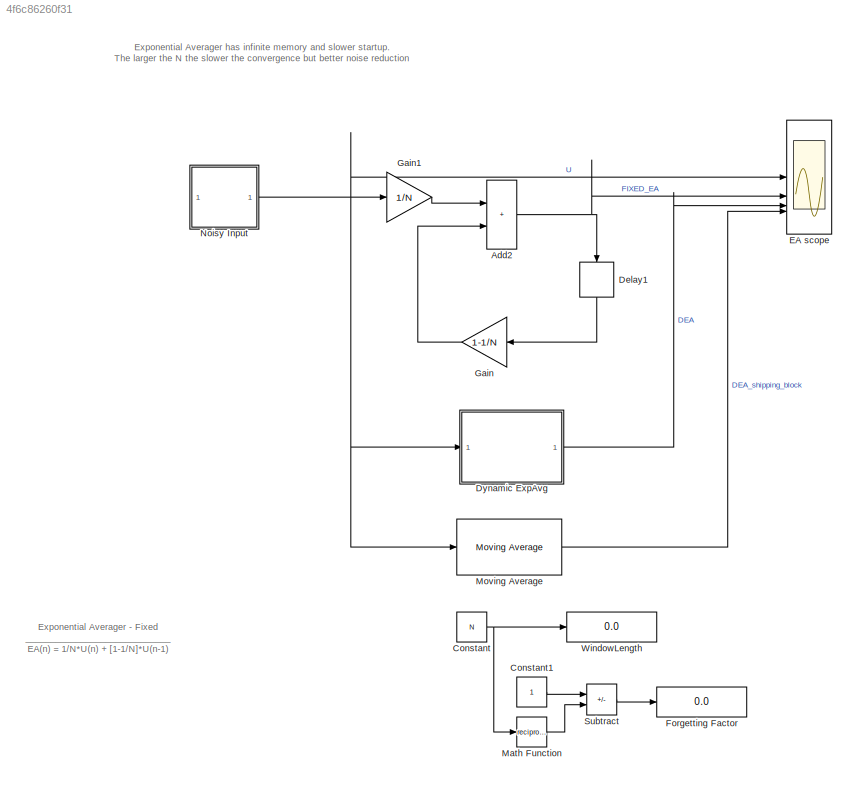
MODEL slx_4f6c86260f31
KIND model
CONFIG AbsTol = auto
CONFIG EnableMultiTasking = off
CONFIG FixedStep = auto
CONFIG InitFcn = N = 100;\n
CONFIG MaxStep = auto
CONFIG MinStep = auto
CONFIG PreLoadFcn = N = 100;
CONFIG RelTol = 1e-3
CONFIG SampleTimeConstraint = Unconstrained
CONFIG SolverName = VariableStepAuto
CONFIG StartTime = 0.0
CONFIG StopTime = 1000
BLOCK [Sum] Add2
  IconShape = rectangular
BLOCK [Constant] Constant
  Value = N
BLOCK [Constant] Constant1
BLOCK [Delay] Delay1
  DelayLength = 1
  InputPortMap = u0
  NameLocation = left
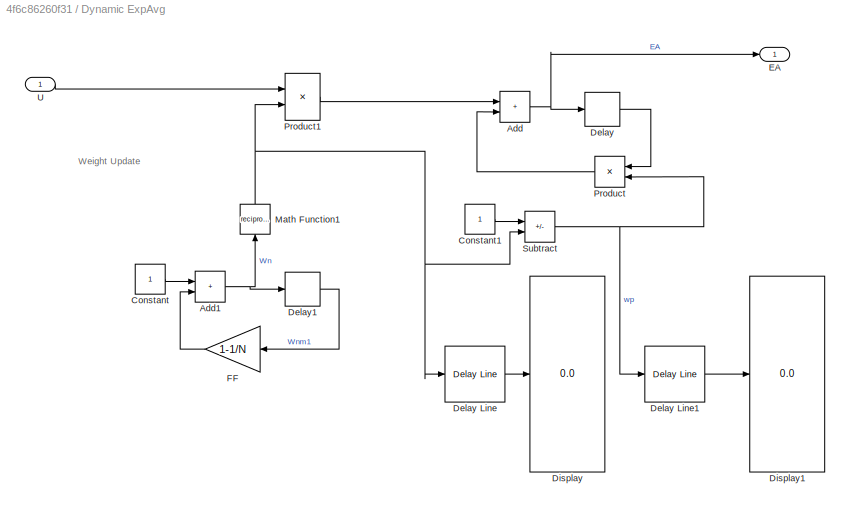
BLOCK [SubSystem] Dynamic ExpAvg
BLOCK [Sum] Dynamic ExpAvg/Add
  IconShape = rectangular
BLOCK [Sum] Dynamic ExpAvg/Add1
  IconShape = rectangular
BLOCK [Constant] Dynamic ExpAvg/Constant
  SampleTime = 1
BLOCK [Constant] Dynamic ExpAvg/Constant1
BLOCK [Delay] Dynamic ExpAvg/Delay
  DelayLength = 1
  InputPortMap = u0
BLOCK [Reference] Dynamic ExpAvg/Delay Line  REF=dspbuff3/Delay Line
  Commented = on
  SourceBlock = dspbuff3/Delay Line
  SourceType = Delay Line
  UserDataPersistent = on
BLOCK [Reference] Dynamic ExpAvg/Delay Line1  REF=dspbuff3/Delay Line
  Commented = on
  SourceBlock = dspbuff3/Delay Line
  SourceType = Delay Line
  UserDataPersistent = on
BLOCK [Delay] Dynamic ExpAvg/Delay1
  DelayLength = 1
  InputPortMap = u0
BLOCK [Display] Dynamic ExpAvg/Display
  Commented = on
  Decimation = 1
BLOCK [Display] Dynamic ExpAvg/Display1
  Commented = on
  Decimation = 1
BLOCK [Outport] Dynamic ExpAvg/EA
BLOCK [Gain] Dynamic ExpAvg/FF
  Gain = 1-1/N
BLOCK [Math] Dynamic ExpAvg/Math Function1
  NameLocation = right
  Operator = reciprocal
BLOCK [Product] Dynamic ExpAvg/Product
  NameLocation = top
BLOCK [Product] Dynamic ExpAvg/Product1
BLOCK [Sum] Dynamic ExpAvg/Subtract
  IconShape = rectangular
  Inputs = +-
BLOCK [Inport] Dynamic ExpAvg/U
BLOCK [Scope] EA scope
  Floating = off
  NumInputPorts = 4
  ScopeSpecificationString = Simulink.scopes.TimeScopeBlockCfg('CurrentConfiguration', extmgr.ConfigurationSet(extmgr.Configuration('Core','General UI',true),extmgr.Configuration('Core','Source UI',true),extmgr.Configuration('Sources','WiredSimulink',true),extmgr.Configuration('Visuals','Time Domain',true,'SerializedDisplays',{struct('MinYLimReal','-0.91369','MaxYLimReal','3.97383','YLabelReal','','MinYLimMag','0.00000','MaxY...<+2257ch>
BLOCK [Display] Forgetting Factor
  Decimation = 1
BLOCK [Gain] Gain
  Gain = 1-1/N
  NameLocation = top
BLOCK [Gain] Gain1
  Gain = 1/N
BLOCK [Math] Math Function
  Operator = reciprocal
BLOCK [Reference] Moving Average  REF=dspstat3/Moving
Average
  SourceBlock = dspstat3/Moving\nAverage
  SourceType = dsp.simulink.MovingAverage
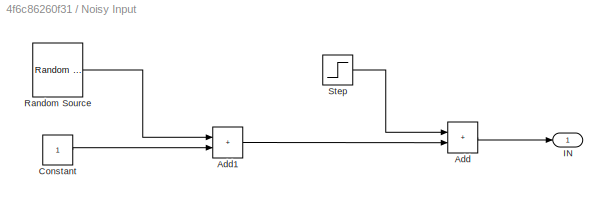
BLOCK [SubSystem] Noisy Input
BLOCK [Sum] Noisy Input/Add
  IconShape = rectangular
BLOCK [Sum] Noisy Input/Add1
  IconShape = rectangular
BLOCK [Constant] Noisy Input/Constant
  SampleTime = 1
BLOCK [Outport] Noisy Input/IN
  VectorParamsAs1DForOutWhenUnconnected = off
BLOCK [Reference] Noisy Input/Random Source  REF=dspsrcs4/Random
Source
  SourceBlock = dspsrcs4/Random\nSource
  SourceType = dsp.simulink.RandomSource
BLOCK [Step] Noisy Input/Step
  SampleTime = 0
  Time = 500
BLOCK [Sum] Subtract
  IconShape = rectangular
  Inputs = +-
BLOCK [Display] WindowLength 
  Decimation = 1
ANNOTATION (root): Exponential Averager - Fixed _____________________________ EA(n) = 1/N*U(n) + [1-1/N]*U(n-1)
ANNOTATION (root): Exponential Averager has infinite memory and slower startup. The larger the N the slower the convergence but better noise reduction
ANNOTATION Dynamic ExpAvg: Weight Update
NET Add2:1 -> Delay1:1, EA scope:2
LINE Constant1:1 -> Subtract:1
NET Constant:1 -> Math Function:1, WindowLength :1
LINE Delay1:1 -> Gain:1
NET Dynamic ExpAvg/Add1:1 -> Dynamic ExpAvg/Delay1:1, Dynamic ExpAvg/Math Function1:1
NET Dynamic ExpAvg/Add:1 -> Dynamic ExpAvg/Delay:1, Dynamic ExpAvg/EA:1
LINE Dynamic ExpAvg/Constant1:1 -> Dynamic ExpAvg/Subtract:1
LINE Dynamic ExpAvg/Constant:1 -> Dynamic ExpAvg/Add1:1
LINE Dynamic ExpAvg/Delay Line1:1 -> Dynamic ExpAvg/Display1:1
LINE Dynamic ExpAvg/Delay Line:1 -> Dynamic ExpAvg/Display:1
LINE Dynamic ExpAvg/Delay1:1 -> Dynamic ExpAvg/FF:1
LINE Dynamic ExpAvg/Delay:1 -> Dynamic ExpAvg/Product:1
LINE Dynamic ExpAvg/FF:1 -> Dynamic ExpAvg/Add1:2
NET Dynamic ExpAvg/Math Function1:1 -> Dynamic ExpAvg/Delay Line:1, Dynamic ExpAvg/Product1:2, Dynamic ExpAvg/Subtract:2
LINE Dynamic ExpAvg/Product1:1 -> Dynamic ExpAvg/Add:1
LINE Dynamic ExpAvg/Product:1 -> Dynamic ExpAvg/Add:2
NET Dynamic ExpAvg/Subtract:1 -> Dynamic ExpAvg/Delay Line1:1, Dynamic ExpAvg/Product:2
LINE Dynamic ExpAvg/U:1 -> Dynamic ExpAvg/Product1:1
LINE Dynamic ExpAvg:1 -> EA scope:3
LINE Gain1:1 -> Add2:1
LINE Gain:1 -> Add2:2
LINE Math Function:1 -> Subtract:2
LINE Moving Average:1 -> EA scope:4
LINE Noisy Input/Add1:1 -> Noisy Input/Add:2
LINE Noisy Input/Add:1 -> Noisy Input/IN:1
LINE Noisy Input/Constant:1 -> Noisy Input/Add1:2
LINE Noisy Input/Random Source:1 -> Noisy Input/Add1:1
LINE Noisy Input/Step:1 -> Noisy Input/Add:1
NET Noisy Input:1 -> Dynamic ExpAvg:1, EA scope:1, Gain1:1, Moving Average:1
LINE Subtract:1 -> Forgetting Factor:1
note: NET lines group one-source signal fan-out (src -> all destinations, sorted); 1:1 wires keep LINE
